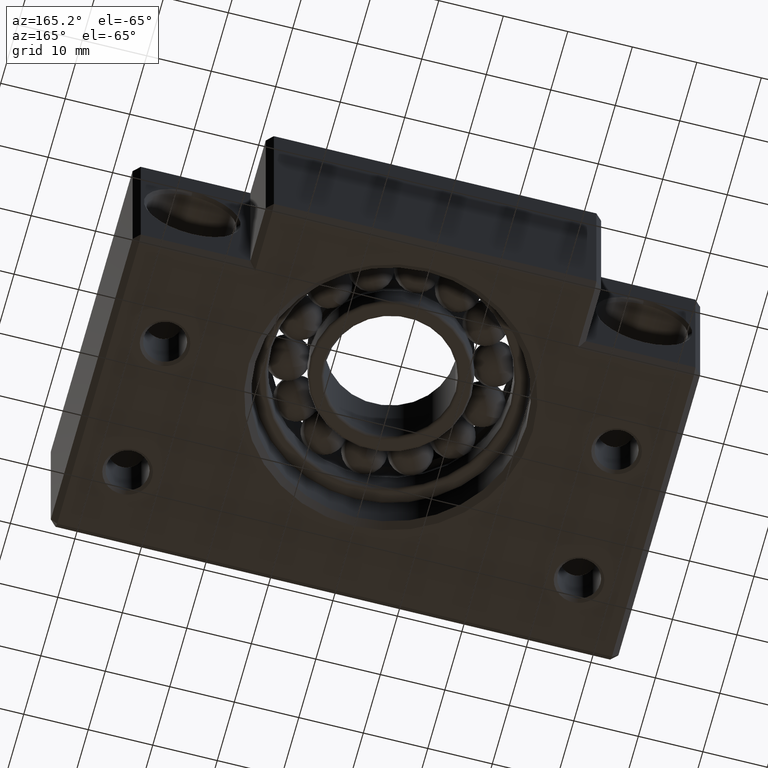
[diagram: clean part render]
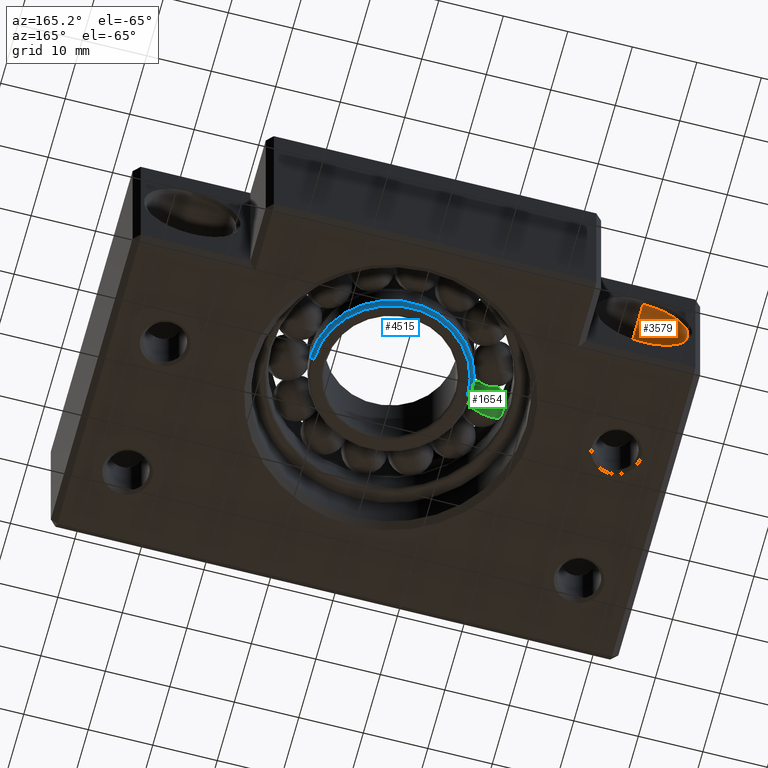
[diagram: same view with three faces highlighted in distinct colors, each labeled with its STEP entity id]
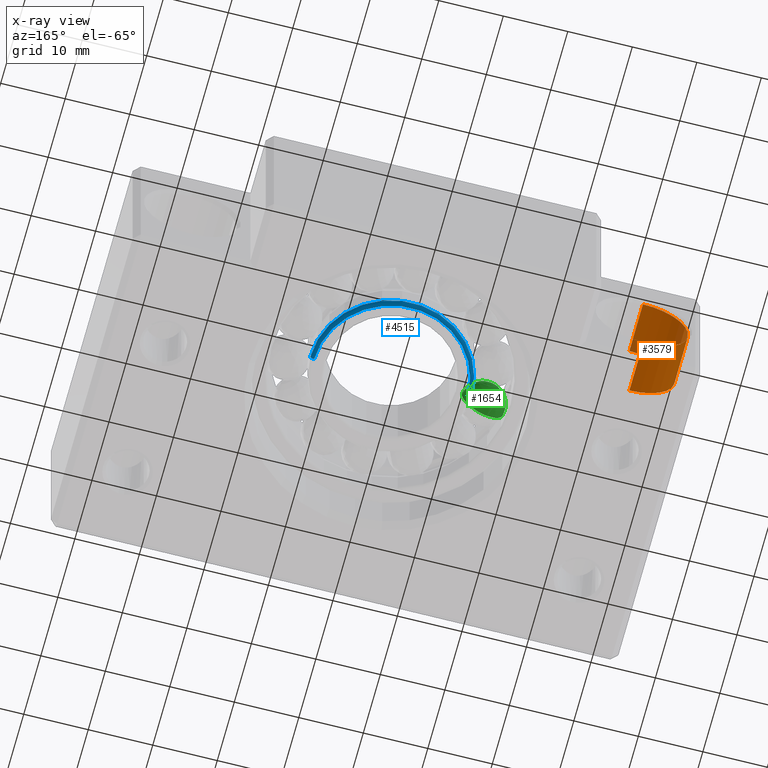
[diagram: x-ray of the same camera — body ghosted, the three highlighted faces saturated]
A machine part, auxiliary view with three faces highlighted in distinct colors.
The next image is the same camera in x-ray (body ghosted, the three faces saturated) — at least one of them is partly hidden behind the body in this view.
Their STEP definitions:

[orange] entity #3579 — the highlighted cylindrical surface (partial cylindrical patch) has radius 7 mm, axis along (-0, 1, -0).
#583 = DIRECTION ( 'NONE',  ( -0.0000000000000000000, 1.000000000000000000, -0.0000000000000000000 ) ) ;
#584 = CARTESIAN_POINT ( 'NONE',  ( -35.00000000000000000, 41.50000000000000000, 0.0000000000000000000 ) ) ;
#585 = AXIS2_PLACEMENT_3D ( 'NONE', #584, #583, #645 ) ;
#586 = CIRCLE ( 'NONE', #585, 6.999999999999999100 ) ;
#633 = DIRECTION ( 'NONE',  ( 0.0000000000000000000, 0.0000000000000000000, 1.000000000000000000 ) ) ;
#634 = DIRECTION ( 'NONE',  ( -0.0000000000000000000, 1.000000000000000000, -0.0000000000000000000 ) ) ;
#635 = CARTESIAN_POINT ( 'NONE',  ( -35.00000000000000000, 50.00000000000000000, 0.0000000000000000000 ) ) ;
#636 = AXIS2_PLACEMENT_3D ( 'NONE', #635, #634, #633 ) ;
#638 = CYLINDRICAL_SURFACE ( 'NONE', #636, 6.999999999999999100 ) ;
#643 = FACE_OUTER_BOUND ( 'NONE', #3571, .T. ) ;
#645 = DIRECTION ( 'NONE',  ( 0.0000000000000000000, 0.0000000000000000000, 1.000000000000000000 ) ) ;
#900 = CARTESIAN_POINT ( 'NONE',  ( -35.00000000000000000, 50.00000000000000000, 6.999999999999999100 ) ) ;
#901 = LINE ( 'NONE', #900, #957 ) ;
#956 = DIRECTION ( 'NONE',  ( -0.0000000000000000000, 1.000000000000000000, -0.0000000000000000000 ) ) ;
#957 = VECTOR ( 'NONE', #956, 1000.000000000000000 ) ;
#1100 = CARTESIAN_POINT ( 'NONE',  ( -35.00000000000000000, 41.50000000000000000, -6.999999999999999100 ) ) ;
#1195 = CARTESIAN_POINT ( 'NONE',  ( -35.00000000000000000, 41.50000000000000000, 6.999999999999999100 ) ) ;
#1263 = DIRECTION ( 'NONE',  ( 0.0000000000000000000, 0.0000000000000000000, -1.000000000000000000 ) ) ;
#1264 = DIRECTION ( 'NONE',  ( 0.0000000000000000000, 1.000000000000000000, 0.0000000000000000000 ) ) ;
#1265 = CARTESIAN_POINT ( 'NONE',  ( -35.00000000000000000, 49.49999999999997200, 0.0000000000000000000 ) ) ;
#1266 = AXIS2_PLACEMENT_3D ( 'NONE', #1265, #1264, #1263 ) ;
#1267 = CIRCLE ( 'NONE', #1266, 6.999999999999999100 ) ;
#1320 = CARTESIAN_POINT ( 'NONE',  ( -35.00000000000000000, 49.49999999999997200, 6.999999999999999100 ) ) ;
#1325 = CARTESIAN_POINT ( 'NONE',  ( -35.00000000000000000, 49.49999999999997200, -6.999999999999999100 ) ) ;
#2085 = DIRECTION ( 'NONE',  ( -0.0000000000000000000, 1.000000000000000000, -0.0000000000000000000 ) ) ;
#2086 = VECTOR ( 'NONE', #2085, 1000.000000000000000 ) ;
#2087 = CARTESIAN_POINT ( 'NONE',  ( -35.00000000000000000, 50.00000000000000000, -6.999999999999999100 ) ) ;
#2088 = LINE ( 'NONE', #2087, #2086 ) ;
#3571 = EDGE_LOOP ( 'NONE', ( #3584, #4285, #3995, #3996 ) ) ;
#3577 = EDGE_CURVE ( 'NONE', #3779, #3855, #586, .T. ) ;
#3579 = ADVANCED_FACE ( 'NONE', ( #643 ), #638, .F. ) ;
#3584 = ORIENTED_EDGE ( 'NONE', *, *, #3577, .F. ) ;
#3735 = EDGE_CURVE ( 'NONE', #3855, #3888, #901, .T. ) ;
#3779 = VERTEX_POINT ( 'NONE', #1100 ) ;
#3855 = VERTEX_POINT ( 'NONE', #1195 ) ;
#3884 = EDGE_CURVE ( 'NONE', #3886, #3888, #1267, .T. ) ;
#3886 = VERTEX_POINT ( 'NONE', #1325 ) ;
#3888 = VERTEX_POINT ( 'NONE', #1320 ) ;
#3995 = ORIENTED_EDGE ( 'NONE', *, *, #3884, .T. ) ;
#3996 = ORIENTED_EDGE ( 'NONE', *, *, #3735, .F. ) ;
#4196 = EDGE_CURVE ( 'NONE', #3779, #3886, #2088, .T. ) ;
#4285 = ORIENTED_EDGE ( 'NONE', *, *, #4196, .T. ) ;

[blue] entity #4515 — the highlighted toroidal blend (fillet) surface has major radius 11.9 mm and minor (blend) radius 0.6 mm.
#2635 = DIRECTION ( 'NONE',  ( 1.000000000000000000, 0.0000000000000000000, 0.0000000000000000000 ) ) ;
#2636 = DIRECTION ( 'NONE',  ( -0.0000000000000000000, -0.0000000000000000000, 1.000000000000000000 ) ) ;
#2637 = CARTESIAN_POINT ( 'NONE',  ( 1.377740456500814400E-014, 34.00000000000000000, -5.400000000000002100 ) ) ;
#2638 = AXIS2_PLACEMENT_3D ( 'NONE', #2637, #2636, #2635 ) ;
#2640 = TOROIDAL_SURFACE ( 'NONE', #2638, 11.90000000000000000, 0.5999999999999998700 ) ;
#2641 = FACE_OUTER_BOUND ( 'NONE', #4517, .T. ) ;
#2651 = CIRCLE ( 'NONE', #2711, 0.5999999999999998700 ) ;
#2652 = DIRECTION ( 'NONE',  ( -1.000000000000000000, 0.0000000000000000000, 0.0000000000000000000 ) ) ;
#2653 = DIRECTION ( 'NONE',  ( 1.224606353822377300E-016, 1.000000000000000000, 0.0000000000000000000 ) ) ;
#2654 = CARTESIAN_POINT ( 'NONE',  ( -11.89999999999998600, 34.00000000000000000, -5.400000000000002100 ) ) ;
#2655 = AXIS2_PLACEMENT_3D ( 'NONE', #2654, #2653, #2652 ) ;
#2656 = CIRCLE ( 'NONE', #2655, 0.5999999999999998700 ) ;
#2661 = DIRECTION ( 'NONE',  ( 1.000000000000000000, 0.0000000000000000000, 0.0000000000000000000 ) ) ;
#2662 = DIRECTION ( 'NONE',  ( -0.0000000000000000000, -0.0000000000000000000, 1.000000000000000000 ) ) ;
#2663 = CARTESIAN_POINT ( 'NONE',  ( 1.377740456500814400E-014, 34.00000000000000000, -5.400000000000002100 ) ) ;
#2664 = AXIS2_PLACEMENT_3D ( 'NONE', #2663, #2662, #2661 ) ;
#2665 = CIRCLE ( 'NONE', #2664, 12.50000000000000000 ) ;
#2672 = CARTESIAN_POINT ( 'NONE',  ( 12.50000000000001400, 34.00000000000000000, -5.400000000000002100 ) ) ;
#2674 = CARTESIAN_POINT ( 'NONE',  ( -12.49999999999998800, 34.00000000000000000, -5.400000000000002100 ) ) ;
#2684 = CARTESIAN_POINT ( 'NONE',  ( 11.90000000000001500, 34.00000000000000000, -6.000000000000001800 ) ) ;
#2708 = DIRECTION ( 'NONE',  ( 0.0000000000000000000, 0.0000000000000000000, -1.000000000000000000 ) ) ;
#2709 = DIRECTION ( 'NONE',  ( 0.0000000000000000000, -1.000000000000000000, 0.0000000000000000000 ) ) ;
#2710 = CARTESIAN_POINT ( 'NONE',  ( 11.90000000000001500, 34.00000000000000000, -5.400000000000002100 ) ) ;
#2711 = AXIS2_PLACEMENT_3D ( 'NONE', #2710, #2709, #2708 ) ;
#2723 = DIRECTION ( 'NONE',  ( 1.000000000000000000, 0.0000000000000000000, 0.0000000000000000000 ) ) ;
#2724 = DIRECTION ( 'NONE',  ( -0.0000000000000000000, -0.0000000000000000000, 1.000000000000000000 ) ) ;
#2725 = AXIS2_PLACEMENT_3D ( 'NONE', #2732, #2724, #2723 ) ;
#2726 = CIRCLE ( 'NONE', #2725, 11.90000000000000000 ) ;
#2732 = CARTESIAN_POINT ( 'NONE',  ( 1.377740456500814400E-014, 34.00000000000000000, -6.000000000000001800 ) ) ;
#2733 = CARTESIAN_POINT ( 'NONE',  ( -11.89999999999998600, 34.00000000000000000, -6.000000000000001800 ) ) ;
#4515 = ADVANCED_FACE ( 'NONE', ( #2641 ), #2640, .T. ) ;
#4517 = EDGE_LOOP ( 'NONE', ( #4565, #4538, #4542, #4539 ) ) ;
#4529 = VERTEX_POINT ( 'NONE', #2674 ) ;
#4532 = VERTEX_POINT ( 'NONE', #2672 ) ;
#4536 = EDGE_CURVE ( 'NONE', #4532, #4529, #2665, .T. ) ;
#4538 = ORIENTED_EDGE ( 'NONE', *, *, #4540, .T. ) ;
#4539 = ORIENTED_EDGE ( 'NONE', *, *, #4541, .F. ) ;
#4540 = EDGE_CURVE ( 'NONE', #4564, #4529, #2656, .T. ) ;
#4541 = EDGE_CURVE ( 'NONE', #4557, #4532, #2651, .T. ) ;
#4542 = ORIENTED_EDGE ( 'NONE', *, *, #4536, .F. ) ;
#4557 = VERTEX_POINT ( 'NONE', #2684 ) ;
#4564 = VERTEX_POINT ( 'NONE', #2733 ) ;
#4565 = ORIENTED_EDGE ( 'NONE', *, *, #4568, .T. ) ;
#4568 = EDGE_CURVE ( 'NONE', #4557, #4564, #2726, .T. ) ;

[green] entity #1654 — the highlighted spherical surface has radius 3.5 mm.
#159 = DIRECTION ( 'NONE',  ( -0.9749279121818228400, -0.2225209339563179500, 0.0000000000000000000 ) ) ;
#160 = DIRECTION ( 'NONE',  ( 0.2225209339563179500, -0.9749279121818228400, 0.0000000000000000000 ) ) ;
#161 = AXIS2_PLACEMENT_3D ( 'NONE', #164, #160, #159 ) ;
#162 = SPHERICAL_SURFACE ( 'NONE', #161, 3.499999999999999100 ) ;
#164 = CARTESIAN_POINT ( 'NONE',  ( -15.11138263881823800, 30.55092552367706900, -1.734723475976807100E-015 ) ) ;
#165 = FACE_OUTER_BOUND ( 'NONE', #1618, .T. ) ;
#183 = DIRECTION ( 'NONE',  ( -0.9749279121818227300, -0.2225209339563179200, 0.0000000000000000000 ) ) ;
#184 = DIRECTION ( 'NONE',  ( -0.2225209339563182200, 0.9749279121818227300, 0.0000000000000000000 ) ) ;
#185 = CARTESIAN_POINT ( 'NONE',  ( -15.11138263881823800, 30.55092552367706900, -1.734723475976807100E-015 ) ) ;
#186 = AXIS2_PLACEMENT_3D ( 'NONE', #185, #184, #183 ) ;
#187 = CIRCLE ( 'NONE', #186, 3.499999999999999600 ) ;
#189 = CARTESIAN_POINT ( 'NONE',  ( -15.11138263881823800, 30.55092552367706900, 3.499999999999997300 ) ) ;
#194 = DIRECTION ( 'NONE',  ( 0.9749279121818227300, 0.2225209339563179200, 0.0000000000000000000 ) ) ;
#195 = DIRECTION ( 'NONE',  ( 0.2225209339563181700, -0.9749279121818229500, 0.0000000000000000000 ) ) ;
#196 = AXIS2_PLACEMENT_3D ( 'NONE', #201, #195, #194 ) ;
#197 = CIRCLE ( 'NONE', #196, 3.499999999999999600 ) ;
#201 = CARTESIAN_POINT ( 'NONE',  ( -15.11138263881823800, 30.55092552367706900, -1.734723475976807100E-015 ) ) ;
#1617 = ORIENTED_EDGE ( 'NONE', *, *, #1672, .F. ) ;
#1618 = EDGE_LOOP ( 'NONE', ( #1617, #1621 ) ) ;
#1621 = ORIENTED_EDGE ( 'NONE', *, *, #1683, .T. ) ;
#1654 = ADVANCED_FACE ( 'NONE', ( #165 ), #162, .T. ) ;
#1672 = EDGE_CURVE ( 'NONE', #4832, #1678, #197, .T. ) ;
#1678 = VERTEX_POINT ( 'NONE', #189 ) ;
#1683 = EDGE_CURVE ( 'NONE', #4832, #1678, #187, .T. ) ;
#3243 = CARTESIAN_POINT ( 'NONE',  ( -15.11138263881823800, 30.55092552367706900, -3.500000000000000900 ) ) ;
#4832 = VERTEX_POINT ( 'NONE', #3243 ) ;